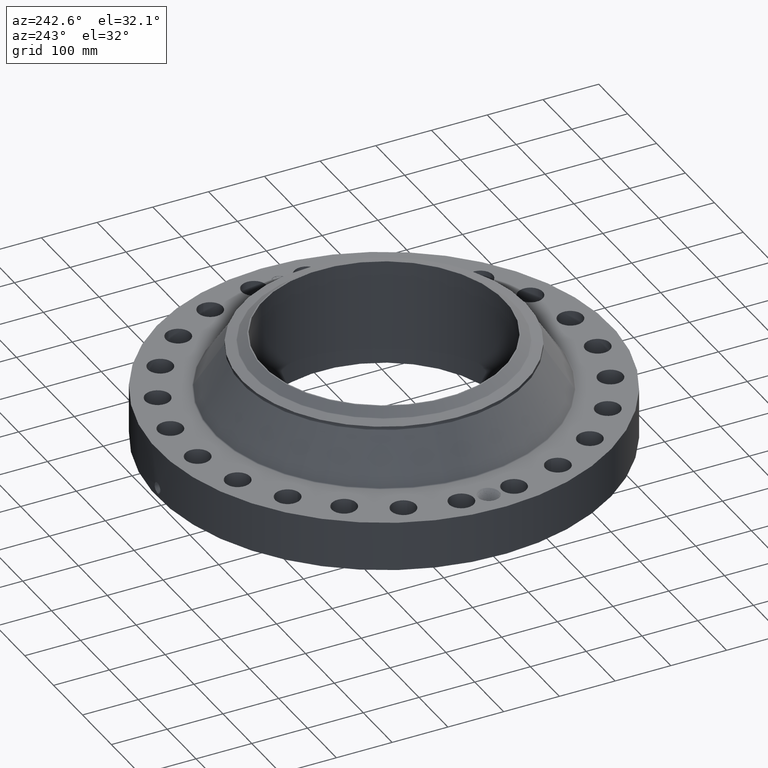
[diagram: clean part render]
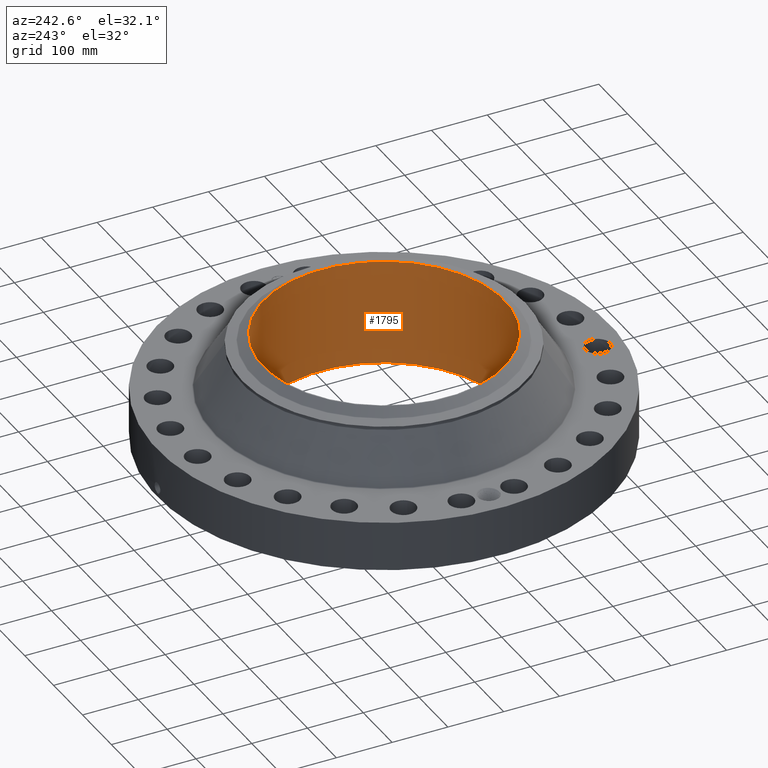
[diagram: same view with one face highlighted and labeled with its STEP entity id]
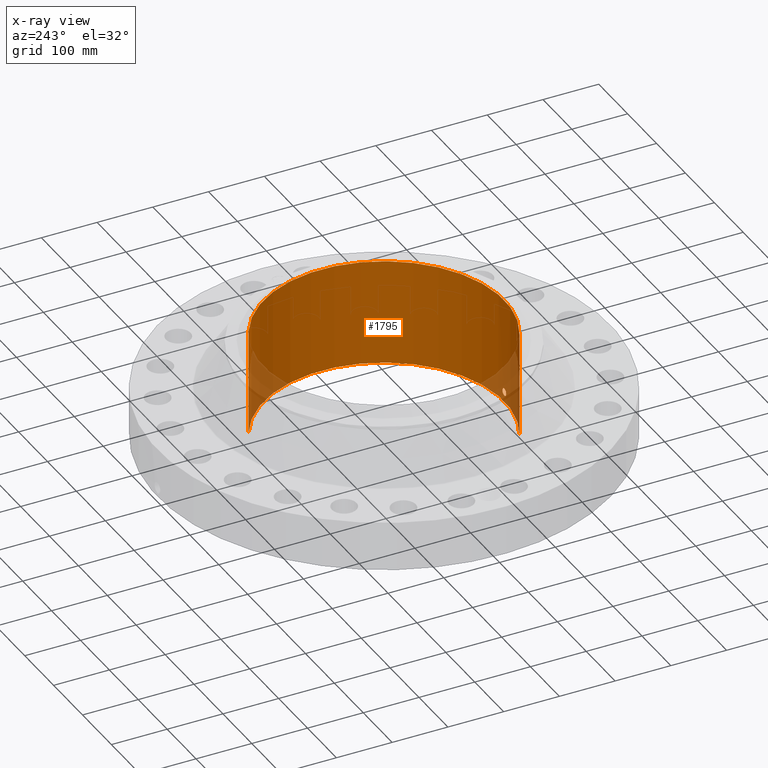
[diagram: x-ray of the same camera — body ghosted, the highlighted face saturated]
A machine part, auxiliary view. The second image highlights one B-rep face of the part: STEP entity #1795.
The next image is the same camera in x-ray: the body ghosted, the highlighted face saturated — about 9% of this face is hidden behind the body in this view.
In plain terms, the highlighted cylindrical surface (partial cylindrical patch) has radius 215.9 mm, axis along (0, 0, -1).
Its self-contained STEP definition (entity closure, byte-faithful):
#254=AXIS2_PLACEMENT_3D('Circle Axis2P3D',#252,#253,$) ;
#1726=AXIS2_PLACEMENT_3D('Cylinder Axis2P3D',#1723,#1724,#1725) ;
#1730=AXIS2_PLACEMENT_3D('Circle Axis2P3D',#1728,#1729,$) ;
#252=CARTESIAN_POINT('Axis2P3D Location',(0.,0.,0.250000000001)) ;
#256=CARTESIAN_POINT('Vertex',(4.07511707815,7.4594517761,0.250000000001)) ;
#258=CARTESIAN_POINT('Vertex',(-4.07511707815,-7.4594517761,0.250000000001)) ;
#1723=CARTESIAN_POINT('Axis2P3D Location',(0.,0.,4.00000000002)) ;
#1728=CARTESIAN_POINT('Axis2P3D Location',(0.,0.,7.75000000003)) ;
#1732=CARTESIAN_POINT('Vertex',(4.07511707815,7.4594517761,7.75000000003)) ;
#1734=CARTESIAN_POINT('Vertex',(-4.07511707815,-7.4594517761,7.75000000003)) ;
#1737=CARTESIAN_POINT('Line Origine',(4.07511707815,7.4594517761,4.00000000002)) ;
#1742=CARTESIAN_POINT('Line Origine',(-4.07511707815,-7.4594517761,4.00000000002)) ;
#1754=CARTESIAN_POINT('Control Point',(0.219395640473,-8.49716809022,0.820143615352)) ;
#1755=CARTESIAN_POINT('Control Point',(0.194443120257,-8.49781236066,0.77446833347)) ;
#1756=CARTESIAN_POINT('Control Point',(0.157605673558,-8.4986718436,0.73528893813)) ;
#1757=CARTESIAN_POINT('Control Point',(0.111109047579,-8.49950770969,0.706757346234)) ;
#1758=CARTESIAN_POINT('Control Point',(0.033674517931,-8.50017275739,0.68411758556)) ;
#1759=CARTESIAN_POINT('Control Point',(-0.0446699380563,-8.49994295238,0.691943471585)) ;
#1760=CARTESIAN_POINT('Control Point',(-0.0702993750005,-8.49976455241,0.697955885415)) ;
#1761=CARTESIAN_POINT('Control Point',(-0.14395510991,-8.49897618111,0.725787195539)) ;
#1762=CARTESIAN_POINT('Control Point',(-0.203242425512,-8.49768931438,0.78050053882)) ;
#1763=CARTESIAN_POINT('Control Point',(-0.232208125467,-8.49684524708,0.826738774886)) ;
#1764=CARTESIAN_POINT('Control Point',(-0.255840248869,-8.49615133503,0.904885871864)) ;
#1765=CARTESIAN_POINT('Control Point',(-0.248283243814,-8.49637304961,0.98425137312)) ;
#1766=CARTESIAN_POINT('Control Point',(-0.242049456258,-8.496558599,1.01081460458)) ;
#1767=CARTESIAN_POINT('Control Point',(-0.232315759571,-8.49683449463,1.03620626528)) ;
#1768=CARTESIAN_POINT('Control Point',(-0.219395640473,-8.49716809022,1.05985638466)) ;
#1769=CARTESIAN_POINT('Vertex',(0.219395640473,-8.49716809022,0.820143615352)) ;
#1771=CARTESIAN_POINT('Vertex',(-0.219395640473,-8.49716809022,1.05985638466)) ;
#1775=CARTESIAN_POINT('Control Point',(-0.219395640473,-8.49716809022,1.05985638466)) ;
#1776=CARTESIAN_POINT('Control Point',(-0.194443120267,-8.49781236066,1.10553166652)) ;
#1777=CARTESIAN_POINT('Control Point',(-0.157605673587,-8.4986718436,1.14471106185)) ;
#1778=CARTESIAN_POINT('Control Point',(-0.111109047543,-8.49950770969,1.17324265378)) ;
#1779=CARTESIAN_POINT('Control Point',(-0.033674517919,-8.50017275739,1.19588241444)) ;
#1780=CARTESIAN_POINT('Control Point',(0.0446699380446,-8.49994295238,1.18805652842)) ;
#1781=CARTESIAN_POINT('Control Point',(0.0702993750002,-8.49976455241,1.18204411459)) ;
#1782=CARTESIAN_POINT('Control Point',(0.14395510988,-8.49897618111,1.15421280448)) ;
#1783=CARTESIAN_POINT('Control Point',(0.203242425466,-8.49768931438,1.09949946123)) ;
#1784=CARTESIAN_POINT('Control Point',(0.232208125483,-8.49684524708,1.05326122507)) ;
#1785=CARTESIAN_POINT('Control Point',(0.255840248843,-8.49615133503,0.975114128192)) ;
#1786=CARTESIAN_POINT('Control Point',(0.248283243829,-8.49637304961,0.895748627038)) ;
#1787=CARTESIAN_POINT('Control Point',(0.242049456206,-8.496558599,0.869185395297)) ;
#1788=CARTESIAN_POINT('Control Point',(0.232315759536,-8.49683449463,0.84379373466)) ;
#1789=CARTESIAN_POINT('Control Point',(0.219395640473,-8.49716809022,0.820143615352)) ;
#253=DIRECTION('Axis2P3D Direction',(0.,0.,-0.0393700787402)) ;
#1724=DIRECTION('Axis2P3D Direction',(0.,0.,-0.0393700787402)) ;
#1725=DIRECTION('Axis2P3D XDirection',(-0.0188750212049,-0.0345504945626,0.)) ;
#1729=DIRECTION('Axis2P3D Direction',(0.,0.,-0.0393700787402)) ;
#1738=DIRECTION('Vector Direction',(0.,0.,-0.0393700787402)) ;
#1743=DIRECTION('Vector Direction',(0.,0.,-0.0393700787402)) ;
#1739=VECTOR('Line Direction',#1738,0.0393700787402) ;
#1744=VECTOR('Line Direction',#1743,0.0393700787402) ;
#1748=ORIENTED_EDGE('',*,*,#1736,.F.) ;
#1749=ORIENTED_EDGE('',*,*,#1741,.T.) ;
#1750=ORIENTED_EDGE('',*,*,#260,.T.) ;
#1751=ORIENTED_EDGE('',*,*,#1746,.F.) ;
#1792=ORIENTED_EDGE('',*,*,#1773,.F.) ;
#1793=ORIENTED_EDGE('',*,*,#1790,.F.) ;
#1794=FACE_BOUND('',#1791,.T.) ;
#1795=ADVANCED_FACE('PartBody',(#1752,#1794),#1727,.F.) ;
#1753=B_SPLINE_CURVE_WITH_KNOTS('',5,(#1754,#1755,#1756,#1757,#1758,#1759,#1760,#1761,#1762,#1763,#1764,#1765,#1766,#1767,#1768),.UNSPECIFIED.,.F.,.U.,(6,3,3,3,6),(0.,9.34857123113,14.0228372851,23.3728719498,28.213451284),.UNSPECIFIED.) ;
#1774=B_SPLINE_CURVE_WITH_KNOTS('',5,(#1775,#1776,#1777,#1778,#1779,#1780,#1781,#1782,#1783,#1784,#1785,#1786,#1787,#1788,#1789),.UNSPECIFIED.,.F.,.U.,(6,3,3,3,6),(0.,9.34857122736,14.0228372808,23.3728719404,28.2134512617),.UNSPECIFIED.) ;
#255=CIRCLE('generated circle',#254,8.50000000003) ;
#1731=CIRCLE('generated circle',#1730,8.50000000003) ;
#1727=CYLINDRICAL_SURFACE('generated cylinder',#1726,8.50000000003) ;
#260=EDGE_CURVE('',#257,#259,#255,.T.) ;
#1736=EDGE_CURVE('',#1733,#1735,#1731,.T.) ;
#1741=EDGE_CURVE('',#1733,#257,#1740,.T.) ;
#1746=EDGE_CURVE('',#1735,#259,#1745,.T.) ;
#1773=EDGE_CURVE('',#1770,#1772,#1753,.T.) ;
#1790=EDGE_CURVE('',#1772,#1770,#1774,.T.) ;
#1747=EDGE_LOOP('',(#1748,#1749,#1750,#1751)) ;
#1791=EDGE_LOOP('',(#1792,#1793)) ;
#1752=FACE_OUTER_BOUND('',#1747,.T.) ;
#1740=LINE('Line',#1737,#1739) ;
#1745=LINE('Line',#1742,#1744) ;
#257=VERTEX_POINT('',#256) ;
#259=VERTEX_POINT('',#258) ;
#1733=VERTEX_POINT('',#1732) ;
#1735=VERTEX_POINT('',#1734) ;
#1770=VERTEX_POINT('',#1769) ;
#1772=VERTEX_POINT('',#1771) ;